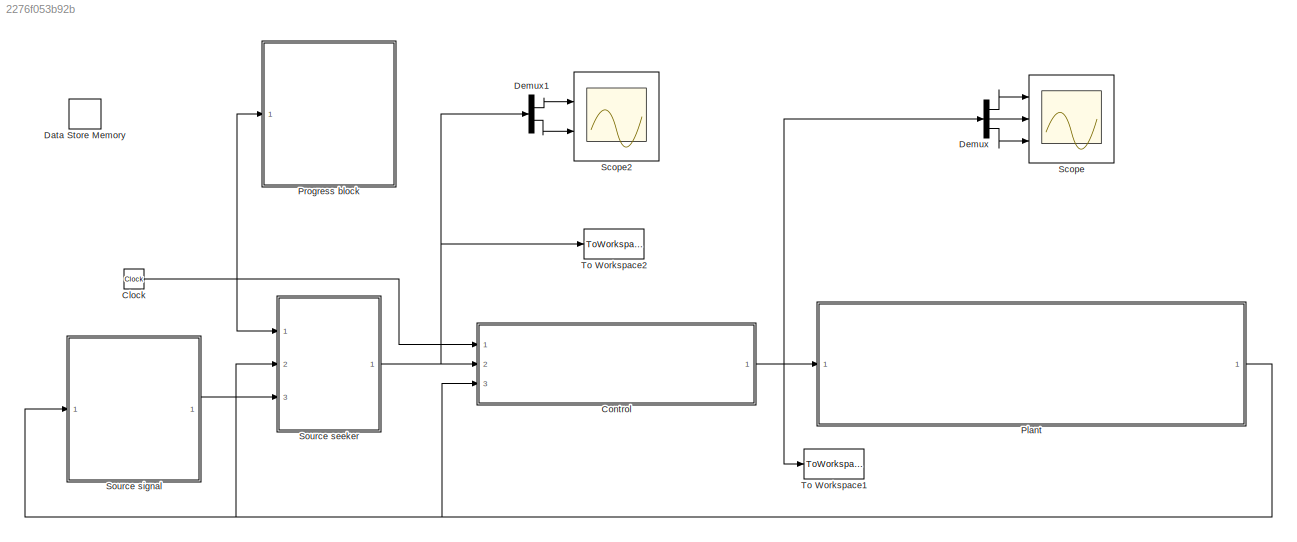
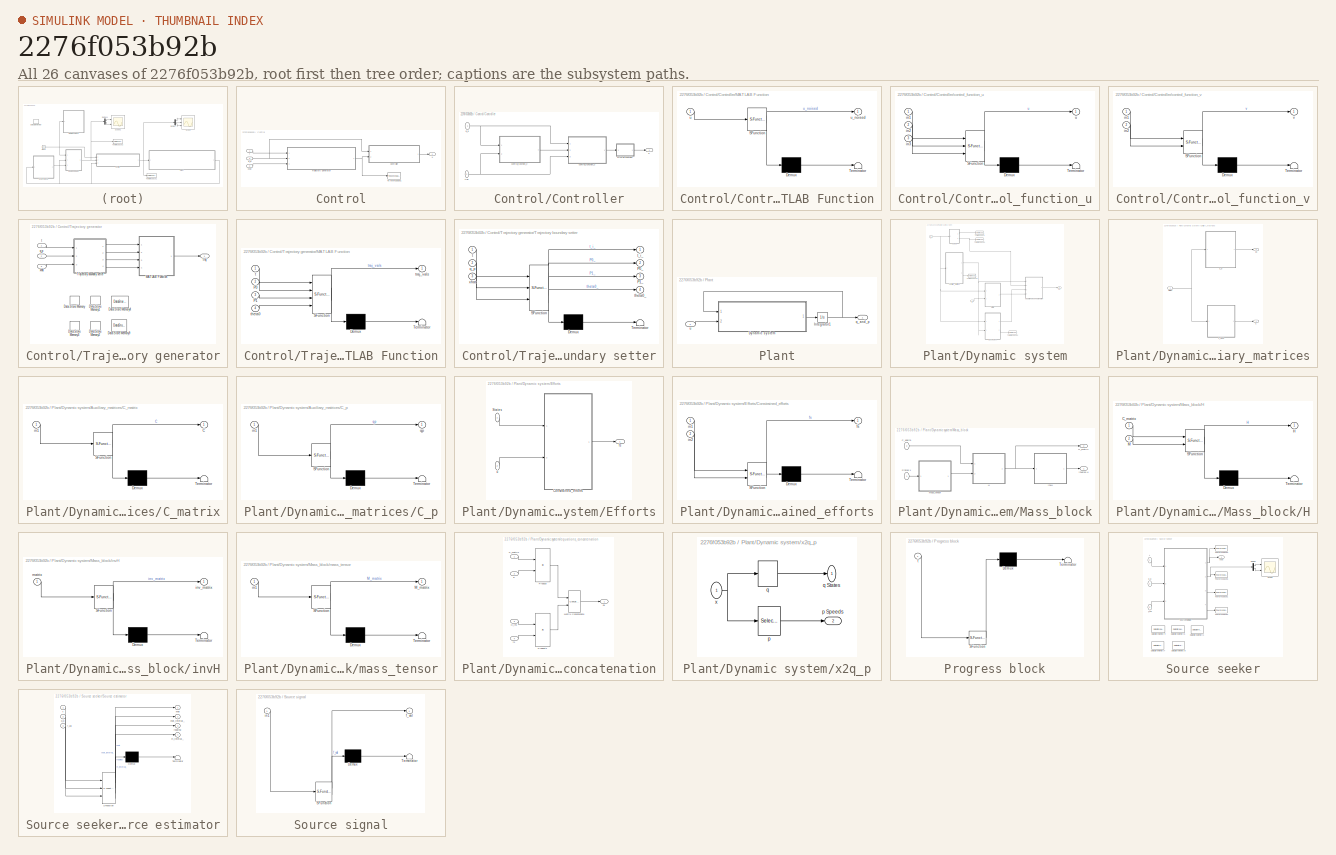
[diagram: thumbnail index - all 26 canvases of the model, root first then tree order]
MODEL slx_2276f053b92b
KIND model
CONFIG AbsTol = auto
CONFIG EnableMultiTasking = off
CONFIG FixedStep = 1e-5
CONFIG MaxStep = auto
CONFIG MinStep = auto
CONFIG RelTol = 1e-3
CONFIG SampleTimeConstraint = Unconstrained
CONFIG Solver = ode4
CONFIG SolverName = ode4
CONFIG StartTime = 0
CONFIG StopTime = tf
BLOCK [Clock] Clock
BLOCK [SubSystem] Control
  Ports = [3, 1]
  RequestExecContextInheritance = off
  Variant = off
BLOCK [SubSystem] Control/Controller
  Ports = [2, 1]
  RequestExecContextInheritance = off
  Variant = off
BLOCK [SubSystem] Control/Controller/MATLAB Function
  ErrorFcn = Stateflow.Translate.translate
  PermitHierarchicalResolution = ExplicitOnly
  Ports = [1, 1]
  RequestExecContextInheritance = off
  SFBlockType = MATLAB Function
  TreatAsAtomicUnit = on
  Variant = off
BLOCK [Demux] Control/Controller/MATLAB Function/ Demux 
  Outputs = 1
  Ports = [1, 1]
BLOCK [S-Function] Control/Controller/MATLAB Function/ SFunction 
  EnableBusSupport = on
  FunctionName = sf_sfun
  Parameters = control_info
  PortCounts = [1 2]
  Ports = [1, 2]
  SFcnIsStateOwnerBlock = off
  SFunctionDeploymentMode = off
  Tag = Stateflow S-Function bary_source_seeking 6
BLOCK [Terminator] Control/Controller/MATLAB Function/ Terminator 
BLOCK [Inport] Control/Controller/MATLAB Function/u
  IconDisplay = Port number
BLOCK [Outport] Control/Controller/MATLAB Function/u_noised
  IconDisplay = Port number
BLOCK [SubSystem] Control/Controller/control_function_u
  ErrorFcn = Stateflow.Translate.translate
  PermitHierarchicalResolution = ExplicitOnly
  Ports = [3, 1]
  RequestExecContextInheritance = off
  SFBlockType = MATLAB Function
  TreatAsAtomicUnit = on
  Variant = off
BLOCK [Demux] Control/Controller/control_function_u/ Demux 
  Outputs = 1
  Ports = [1, 1]
BLOCK [S-Function] Control/Controller/control_function_u/ SFunction 
  EnableBusSupport = on
  FunctionName = sf_sfun
  PortCounts = [3 2]
  Ports = [3, 2]
  SFcnIsStateOwnerBlock = off
  SFunctionDeploymentMode = off
  Tag = Stateflow S-Function bary_source_seeking 1
BLOCK [Terminator] Control/Controller/control_function_u/ Terminator 
BLOCK [Inport] Control/Controller/control_function_u/in1
  IconDisplay = Port number
BLOCK [Inport] Control/Controller/control_function_u/in2
  IconDisplay = Port number
  Port = 2
BLOCK [Inport] Control/Controller/control_function_u/in3
  IconDisplay = Port number
  Port = 3
BLOCK [Outport] Control/Controller/control_function_u/u
  IconDisplay = Port number
BLOCK [SubSystem] Control/Controller/control_function_v
  ErrorFcn = Stateflow.Translate.translate
  PermitHierarchicalResolution = ExplicitOnly
  Ports = [2, 1]
  RequestExecContextInheritance = off
  SFBlockType = MATLAB Function
  TreatAsAtomicUnit = on
  Variant = off
BLOCK [Demux] Control/Controller/control_function_v/ Demux 
  Outputs = 1
  Ports = [1, 1]
BLOCK [S-Function] Control/Controller/control_function_v/ SFunction 
  EnableBusSupport = on
  FunctionName = sf_sfun
  PortCounts = [2 2]
  Ports = [2, 2]
  SFcnIsStateOwnerBlock = off
  SFunctionDeploymentMode = off
  Tag = Stateflow S-Function bary_source_seeking 5
BLOCK [Terminator] Control/Controller/control_function_v/ Terminator 
BLOCK [Inport] Control/Controller/control_function_v/in1
  IconDisplay = Port number
BLOCK [Inport] Control/Controller/control_function_v/in2
  IconDisplay = Port number
  Port = 2
BLOCK [Outport] Control/Controller/control_function_v/v
  IconDisplay = Port number
BLOCK [Inport] Control/Controller/q_p
  IconDisplay = Port number
BLOCK [Inport] Control/Controller/traj
  IconDisplay = Port number
  Port = 2
BLOCK [Outport] Control/Controller/u
  IconDisplay = Port number
BLOCK [ToWorkspace] Control/To Workspace1
  FixptAsFi = on
  MaxDataPoints = inf
  Ports = [1]
  SampleTime = -1
  Save2DSignal = 3-D array (concatenate along third dimension)
  SaveFormat = Structure With Time
  VariableName = trajs
BLOCK [SubSystem] Control/Trajectory generator
  Ports = [3, 1]
  RequestExecContextInheritance = off
  Variant = off
BLOCK [DataStoreMemory] Control/Trajectory generator/Data Store Memory
  DataStoreName = P0
  Dimensions = [2, 1]
  InitialValue = x0(1:2)
  OutDataTypeStr = double
  ShowAdditionalParam = off
  SignalType = real
  WriteAfterReadMsg = warning
  WriteAfterWriteMsg = warning
BLOCK [DataStoreMemory] Control/Trajectory generator/Data Store Memory1
  DataStoreName = P1
  InitialValue = xhat0
  OutDataTypeStr = double
  ShowAdditionalParam = off
  SignalType = real
BLOCK [DataStoreMemory] Control/Trajectory generator/Data Store Memory2
  DataStoreName = theta0
  InitialValue = x0(3)
  OutDataTypeStr = double
  ShowAdditionalParam = off
  SignalType = real
BLOCK [DataStoreMemory] Control/Trajectory generator/Data Store Memory3
  DataStoreName = t_i
  OutDataTypeStr = double
  ShowAdditionalParam = off
  SignalType = real
BLOCK [DataStoreMemory] Control/Trajectory generator/Data Store Memory4
  DataStoreName = traj_params
  OutDataTypeStr = double
  ShowAdditionalParam = off
  SignalType = real
BLOCK [DataStoreMemory] Control/Trajectory generator/Data Store Memory9
  DataStoreName = t_0
  OutDataTypeStr = double
  ShowAdditionalParam = off
  SignalType = real
BLOCK [SubSystem] Control/Trajectory generator/MATLAB Function
  ErrorFcn = Stateflow.Translate.translate
  PermitHierarchicalResolution = ExplicitOnly
  Ports = [4, 1]
  RequestExecContextInheritance = off
  SFBlockType = MATLAB Function
  TreatAsAtomicUnit = on
  Variant = off
BLOCK [Demux] Control/Trajectory generator/MATLAB Function/ Demux 
  Outputs = 1
  Ports = [1, 1]
BLOCK [S-Function] Control/Trajectory generator/MATLAB Function/ SFunction 
  EnableBusSupport = on
  FunctionName = sf_sfun
  Parameters = trajectory_info
  PortCounts = [4 2]
  Ports = [4, 2]
  SFcnIsStateOwnerBlock = off
  SFunctionDeploymentMode = off
  Tag = Stateflow S-Function bary_source_seeking 2
BLOCK [Terminator] Control/Trajectory generator/MATLAB Function/ Terminator 
BLOCK [Inport] Control/Trajectory generator/MATLAB Function/P0
  IconDisplay = Port number
  Port = 2
BLOCK [Inport] Control/Trajectory generator/MATLAB Function/P1
  IconDisplay = Port number
  Port = 3
BLOCK [Inport] Control/Trajectory generator/MATLAB Function/t
  IconDisplay = Port number
BLOCK [Inport] Control/Trajectory generator/MATLAB Function/theta0
  IconDisplay = Port number
  Port = 4
BLOCK [Outport] Control/Trajectory generator/MATLAB Function/traj_vals
  IconDisplay = Port number
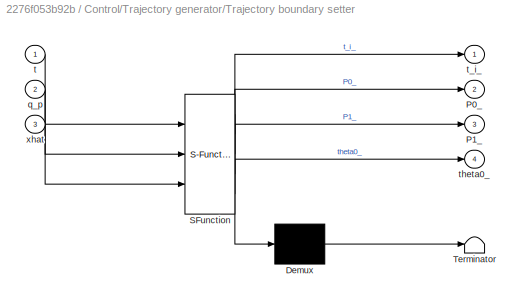
BLOCK [SubSystem] Control/Trajectory generator/Trajectory boundary setter
  ErrorFcn = Stateflow.Translate.translate
  PermitHierarchicalResolution = ExplicitOnly
  Ports = [3, 4]
  RequestExecContextInheritance = off
  SFBlockType = MATLAB Function
  TreatAsAtomicUnit = on
  Variant = off
BLOCK [Demux] Control/Trajectory generator/Trajectory boundary setter/ Demux 
  Outputs = 1
  Ports = [1, 1]
BLOCK [S-Function] Control/Trajectory generator/Trajectory boundary setter/ SFunction 
  EnableBusSupport = on
  FunctionName = sf_sfun
  Parameters = source_params
  PortCounts = [3 5]
  Ports = [3, 5]
  SFcnIsStateOwnerBlock = off
  SFunctionDeploymentMode = off
  Tag = Stateflow S-Function bary_source_seeking 4
BLOCK [Terminator] Control/Trajectory generator/Trajectory boundary setter/ Terminator 
BLOCK [Outport] Control/Trajectory generator/Trajectory boundary setter/P0_
  IconDisplay = Port number
  Port = 2
BLOCK [Outport] Control/Trajectory generator/Trajectory boundary setter/P1_
  IconDisplay = Port number
  Port = 3
BLOCK [Inport] Control/Trajectory generator/Trajectory boundary setter/q_p
  IconDisplay = Port number
  Port = 2
BLOCK [Inport] Control/Trajectory generator/Trajectory boundary setter/t
  IconDisplay = Port number
BLOCK [Outport] Control/Trajectory generator/Trajectory boundary setter/t_i_
  IconDisplay = Port number
BLOCK [Outport] Control/Trajectory generator/Trajectory boundary setter/theta0_
  IconDisplay = Port number
  Port = 4
BLOCK [Inport] Control/Trajectory generator/Trajectory boundary setter/xhat
  IconDisplay = Port number
  Port = 3
BLOCK [Inport] Control/Trajectory generator/q_p
  IconDisplay = Port number
  Port = 2
BLOCK [Inport] Control/Trajectory generator/t
  IconDisplay = Port number
BLOCK [Outport] Control/Trajectory generator/traj
  IconDisplay = Port number
BLOCK [Inport] Control/Trajectory generator/xhat
  IconDisplay = Port number
  Port = 3
BLOCK [Inport] Control/q_p
  IconDisplay = Port number
  Port = 3
BLOCK [Inport] Control/t
  IconDisplay = Port number
BLOCK [Outport] Control/u
  IconDisplay = Port number
BLOCK [Inport] Control/xhat
  IconDisplay = Port number
  Port = 2
BLOCK [DataStoreMemory] Data Store Memory
  DataStoreName = t_i
  OutDataTypeStr = double
  ShowAdditionalParam = off
  SignalType = real
BLOCK [Demux] Demux
  DisplayOption = bar
  Outputs = 3
  Ports = [1, 3]
BLOCK [Demux] Demux1
  DisplayOption = bar
  Outputs = 2
  Ports = [1, 2]
BLOCK [SubSystem] Plant
  Ports = [1, 1]
  RequestExecContextInheritance = off
  Variant = off
BLOCK [SubSystem] Plant/Dynamic system
  Ports = [2, 1]
  RequestExecContextInheritance = off
  Variant = off
BLOCK [SubSystem] Plant/Dynamic system/Auxiliary_matrices
  Ports = [1, 2]
  RequestExecContextInheritance = off
  Variant = off
BLOCK [Outport] Plant/Dynamic system/Auxiliary_matrices/C
  IconDisplay = Port number
BLOCK [SubSystem] Plant/Dynamic system/Auxiliary_matrices/C_matrix
  ErrorFcn = Stateflow.Translate.translate
  PermitHierarchicalResolution = ExplicitOnly
  Ports = [1, 1]
  RequestExecContextInheritance = off
  SFBlockType = MATLAB Function
  TreatAsAtomicUnit = on
  Variant = off
BLOCK [Demux] Plant/Dynamic system/Auxiliary_matrices/C_matrix/ Demux 
  Outputs = 1
  Ports = [1, 1]
BLOCK [S-Function] Plant/Dynamic system/Auxiliary_matrices/C_matrix/ SFunction 
  EnableBusSupport = on
  FunctionName = sf_sfun
  PortCounts = [1 2]
  Ports = [1, 2]
  SFcnIsStateOwnerBlock = off
  SFunctionDeploymentMode = off
  Tag = Stateflow S-Function bary_source_seeking 8
BLOCK [Terminator] Plant/Dynamic system/Auxiliary_matrices/C_matrix/ Terminator 
BLOCK [Outport] Plant/Dynamic system/Auxiliary_matrices/C_matrix/C
  IconDisplay = Port number
BLOCK [Inport] Plant/Dynamic system/Auxiliary_matrices/C_matrix/in1
  IconDisplay = Port number
BLOCK [SubSystem] Plant/Dynamic system/Auxiliary_matrices/C_p
  ErrorFcn = Stateflow.Translate.translate
  PermitHierarchicalResolution = ExplicitOnly
  Ports = [1, 1]
  RequestExecContextInheritance = off
  SFBlockType = MATLAB Function
  TreatAsAtomicUnit = on
  Variant = off
BLOCK [Demux] Plant/Dynamic system/Auxiliary_matrices/C_p/ Demux 
  Outputs = 1
  Ports = [1, 1]
BLOCK [S-Function] Plant/Dynamic system/Auxiliary_matrices/C_p/ SFunction 
  EnableBusSupport = on
  FunctionName = sf_sfun
  PortCounts = [1 2]
  Ports = [1, 2]
  SFcnIsStateOwnerBlock = off
  SFunctionDeploymentMode = off
  Tag = Stateflow S-Function bary_source_seeking 16
BLOCK [Terminator] Plant/Dynamic system/Auxiliary_matrices/C_p/ Terminator 
BLOCK [Inport] Plant/Dynamic system/Auxiliary_matrices/C_p/in1
  IconDisplay = Port number
BLOCK [Outport] Plant/Dynamic system/Auxiliary_matrices/C_p/qp
  IconDisplay = Port number
BLOCK [Inport] Plant/Dynamic system/Auxiliary_matrices/States
  IconDisplay = Port number
BLOCK [Outport] Plant/Dynamic system/Auxiliary_matrices/qp
  IconDisplay = Port number
  Port = 2
BLOCK [SubSystem] Plant/Dynamic system/Efforts
  Ports = [2, 1]
  RequestExecContextInheritance = off
  Variant = off
BLOCK [SubSystem] Plant/Dynamic system/Efforts/Constrained_efforts
  ErrorFcn = Stateflow.Translate.translate
  PermitHierarchicalResolution = ExplicitOnly
  Ports = [2, 1]
  RequestExecContextInheritance = off
  SFBlockType = MATLAB Function
  TreatAsAtomicUnit = on
  Variant = off
BLOCK [Demux] Plant/Dynamic system/Efforts/Constrained_efforts/ Demux 
  Outputs = 1
  Ports = [1, 1]
BLOCK [S-Function] Plant/Dynamic system/Efforts/Constrained_efforts/ SFunction 
  EnableBusSupport = on
  FunctionName = sf_sfun
  PortCounts = [2 2]
  Ports = [2, 2]
  SFcnIsStateOwnerBlock = off
  SFunctionDeploymentMode = off
  Tag = Stateflow S-Function bary_source_seeking 9
BLOCK [Terminator] Plant/Dynamic system/Efforts/Constrained_efforts/ Terminator 
BLOCK [Outport] Plant/Dynamic system/Efforts/Constrained_efforts/fs
  IconDisplay = Port number
BLOCK [Inport] Plant/Dynamic system/Efforts/Constrained_efforts/in1
  IconDisplay = Port number
BLOCK [Inport] Plant/Dynamic system/Efforts/Constrained_efforts/in2
  IconDisplay = Port number
  Port = 2
BLOCK [Inport] Plant/Dynamic system/Efforts/States
  IconDisplay = Port number
BLOCK [Outport] Plant/Dynamic system/Efforts/fs
  IconDisplay = Port number
BLOCK [Inport] Plant/Dynamic system/Efforts/u
  IconDisplay = Port number
  Port = 2
BLOCK [SubSystem] Plant/Dynamic system/Mass_block
  Ports = [2, 2]
  RequestExecContextInheritance = off
  Variant = off
BLOCK [Inport] Plant/Dynamic system/Mass_block/C_1delta  
  IconDisplay = Port number
  Port = 2
BLOCK [SubSystem] Plant/Dynamic system/Mass_block/H
  ErrorFcn = Stateflow.Translate.translate
  PermitHierarchicalResolution = ExplicitOnly
  Ports = [2, 1]
  RequestExecContextInheritance = off
  SFBlockType = MATLAB Function
  TreatAsAtomicUnit = on
  Variant = off
BLOCK [Demux] Plant/Dynamic system/Mass_block/H/ Demux 
  Outputs = 1
  Ports = [1, 1]
BLOCK [S-Function] Plant/Dynamic system/Mass_block/H/ SFunction 
  EnableBusSupport = on
  FunctionName = sf_sfun
  PortCounts = [2 2]
  Ports = [2, 2]
  SFcnIsStateOwnerBlock = off
  SFunctionDeploymentMode = off
  Tag = Stateflow S-Function bary_source_seeking 10
BLOCK [Terminator] Plant/Dynamic system/Mass_block/H/ Terminator 
BLOCK [Inport] Plant/Dynamic system/Mass_block/H/C_matrix
  IconDisplay = Port number
BLOCK [Outport] Plant/Dynamic system/Mass_block/H/H
  IconDisplay = Port number
BLOCK [Inport] Plant/Dynamic system/Mass_block/H/M
  IconDisplay = Port number
  Port = 2
BLOCK [Outport] Plant/Dynamic system/Mass_block/H_matrix
  IconDisplay = Port number
  Port = 2
BLOCK [Inport] Plant/Dynamic system/Mass_block/States x
  IconDisplay = Port number
BLOCK [SubSystem] Plant/Dynamic system/Mass_block/invH
  ErrorFcn = Stateflow.Translate.translate
  PermitHierarchicalResolution = ExplicitOnly
  Ports = [1, 1]
  RequestExecContextInheritance = off
  SFBlockType = MATLAB Function
  TreatAsAtomicUnit = on
  Variant = off
BLOCK [Demux] Plant/Dynamic system/Mass_block/invH/ Demux 
  Outputs = 1
  Ports = [1, 1]
BLOCK [S-Function] Plant/Dynamic system/Mass_block/invH/ SFunction 
  EnableBusSupport = on
  FunctionName = sf_sfun
  PortCounts = [1 2]
  Ports = [1, 2]
  SFcnIsStateOwnerBlock = off
  SFunctionDeploymentMode = off
  Tag = Stateflow S-Function bary_source_seeking 12
BLOCK [Terminator] Plant/Dynamic system/Mass_block/invH/ Terminator 
BLOCK [Outport] Plant/Dynamic system/Mass_block/invH/inv_matrix
  IconDisplay = Port number
BLOCK [Inport] Plant/Dynamic system/Mass_block/invH/matrix
  IconDisplay = Port number
BLOCK [Outport] Plant/Dynamic system/Mass_block/inverse H
  IconDisplay = Port number
BLOCK [SubSystem] Plant/Dynamic system/Mass_block/mass_tensor
  ErrorFcn = Stateflow.Translate.translate
  PermitHierarchicalResolution = ExplicitOnly
  Ports = [1, 1]
  RequestExecContextInheritance = off
  SFBlockType = MATLAB Function
  TreatAsAtomicUnit = on
  Variant = off
BLOCK [Demux] Plant/Dynamic system/Mass_block/mass_tensor/ Demux 
  Outputs = 1
  Ports = [1, 1]
BLOCK [S-Function] Plant/Dynamic system/Mass_block/mass_tensor/ SFunction 
  EnableBusSupport = on
  FunctionName = sf_sfun
  PortCounts = [1 2]
  Ports = [1, 2]
  SFcnIsStateOwnerBlock = off
  SFunctionDeploymentMode = off
  Tag = Stateflow S-Function bary_source_seeking 11
BLOCK [Terminator] Plant/Dynamic system/Mass_block/mass_tensor/ Terminator 
BLOCK [Outport] Plant/Dynamic system/Mass_block/mass_tensor/M_matrix
  IconDisplay = Port number
BLOCK [Inport] Plant/Dynamic system/Mass_block/mass_tensor/in1
  IconDisplay = Port number
BLOCK [ToWorkspace] Plant/Dynamic system/To Workspace
  FixptAsFi = on
  MaxDataPoints = inf
  Ports = [1]
  SampleTime = -1
  Save2DSignal = 3-D array (concatenate along third dimension)
  SaveFormat = Structure With Time
  VariableName = coordinates
BLOCK [ToWorkspace] Plant/Dynamic system/To Workspace1
  FixptAsFi = on
  MaxDataPoints = inf
  Ports = [1]
  SampleTime = -1
  Save2DSignal = 3-D array (concatenate along third dimension)
  SaveFormat = Structure With Time
  VariableName = p_speeds
BLOCK [ToWorkspace] Plant/Dynamic system/To Workspace2
  FixptAsFi = on
  MaxDataPoints = inf
  Ports = [1]
  SampleTime = -1
  Save2DSignal = 3-D array (concatenate along third dimension)
  SaveFormat = Structure With Time
  VariableName = H
BLOCK [ToWorkspace] Plant/Dynamic system/To Workspace3
  FixptAsFi = on
  MaxDataPoints = inf
  Ports = [1]
  SampleTime = -1
  Save2DSignal = 3-D array (concatenate along third dimension)
  SaveFormat = Structure With Time
  VariableName = q_speeds
BLOCK [Outport] Plant/Dynamic system/dx
  IconDisplay = Port number
BLOCK [SubSystem] Plant/Dynamic system/equations_concatenation
  Ports = [4, 1]
  RequestExecContextInheritance = off
  Variant = off
BLOCK [Inport] Plant/Dynamic system/equations_concatenation/C_matrix
  IconDisplay = Port number
BLOCK [Inport] Plant/Dynamic system/equations_concatenation/H_inv
  IconDisplay = Port number
  Port = 3
BLOCK [Concatenate] Plant/Dynamic system/equations_concatenation/Matrix Concatenate
  ConcatenateDimension = 2
  Ports = [2, 1]
BLOCK [Product] Plant/Dynamic system/equations_concatenation/Product
  InputSameDT = off
  Multiplication = Matrix(*)
  OutDataTypeStr = Inherit: Inherit via internal rule
  Ports = [2, 1]
  RndMeth = Floor
  SaturateOnIntegerOverflow = off
BLOCK [Product] Plant/Dynamic system/equations_concatenation/Product1
  InputSameDT = off
  Multiplication = Matrix(*)
  OutDataTypeStr = Inherit: Inherit via internal rule
  Ports = [2, 1]
  RndMeth = Floor
  SaturateOnIntegerOverflow = off
BLOCK [Outport] Plant/Dynamic system/equations_concatenation/dx
  IconDisplay = Port number
BLOCK [Inport] Plant/Dynamic system/equations_concatenation/fs
  IconDisplay = Port number
  Port = 4
BLOCK [Inport] Plant/Dynamic system/equations_concatenation/p
  IconDisplay = Port number
  Port = 2
BLOCK [Inport] Plant/Dynamic system/u
  IconDisplay = Port number
  Port = 2
BLOCK [Inport] Plant/Dynamic system/x
  IconDisplay = Port number
BLOCK [SubSystem] Plant/Dynamic system/x2q_p
  Ports = [1, 2]
  RequestExecContextInheritance = off
  Variant = off
BLOCK [Selector] Plant/Dynamic system/x2q_p/p
  IndexOptions = Index vector (dialog)
  Indices = (length(sys.kin.q))+1:(length(sys.kin.q) + length(sys.kin.p{end}))
  InputPortWidth = length(sys.kin.q) + length(sys.kin.p{end})
  OutputSizes = 1
  Ports = [1, 1]
BLOCK [Outport] Plant/Dynamic system/x2q_p/p Speeds
  IconDisplay = Port number
  Port = 2
BLOCK [Selector] Plant/Dynamic system/x2q_p/q
  IndexOptions = Index vector (dialog)
  Indices = 1:length(sys.kin.q)
  InputPortWidth = length(sys.kin.q) + length(sys.kin.p{end})
  OutputSizes = 1
  Ports = [1, 1]
BLOCK [Outport] Plant/Dynamic system/x2q_p/q States
  IconDisplay = Port number
BLOCK [Inport] Plant/Dynamic system/x2q_p/x
  IconDisplay = Port number
BLOCK [Integrator] Plant/Integrator1
  InitialCondition = x0
  Ports = [1, 1]
BLOCK [Outport] Plant/q_and_p
  IconDisplay = Port number
BLOCK [Inport] Plant/u
  IconDisplay = Port number
BLOCK [SubSystem] Progress block
  ErrorFcn = Stateflow.Translate.translate
  PermitHierarchicalResolution = ExplicitOnly
  Ports = [1]
  RequestExecContextInheritance = off
  SFBlockType = MATLAB Function
  TreatAsAtomicUnit = on
  Variant = off
BLOCK [Demux] Progress block/ Demux 
  Outputs = 1
  Ports = [1, 1]
BLOCK [S-Function] Progress block/ SFunction 
  EnableBusSupport = on
  FunctionName = sf_sfun
  Parameters = delta_t_disp,tf
  PortCounts = [1 1]
  Ports = [1, 1]
  SFcnIsStateOwnerBlock = off
  SFunctionDeploymentMode = off
  Tag = Stateflow S-Function bary_source_seeking 13
BLOCK [Terminator] Progress block/ Terminator 
BLOCK [Inport] Progress block/t
  IconDisplay = Port number
BLOCK [Scope] Scope
  NumInputPorts = 3
  Ports = [3]
  ScopeSpecificationString = Simulink.scopes.TimeScopeBlockCfg('CurrentConfiguration', extmgr.ConfigurationSet(extmgr.Configuration('Core','General UI',true),extmgr.Configuration('Core','Source UI',true),extmgr.Configuration('Sources','WiredSimulink',true),extmgr.Configuration('Visuals','Time Domain',true,'SerializedDisplays',{struct('MinYLimReal','-47524560.40631','MaxYLimReal','46881254.05789','YLabelReal','','MinYLimMag','...<+2693ch>
BLOCK [Scope] Scope2
  NumInputPorts = 2
  Ports = [2]
  ScopeSpecificationString = Simulink.scopes.TimeScopeBlockCfg('CurrentConfiguration', extmgr.ConfigurationSet(extmgr.Configuration('Core','General UI',true),extmgr.Configuration('Core','Source UI',true),extmgr.Configuration('Sources','WiredSimulink',true,'DataLoggingVariableName','ScopeData3'),extmgr.Configuration('Visuals','Time Domain',true,'SerializedDisplays',{struct('MinYLimReal','1.14515','MaxYLimReal','3.56249','YLabe...<+1977ch>
BLOCK [SubSystem] Source seeker
  Ports = [3, 1]
  RequestExecContextInheritance = off
  Variant = off
BLOCK [DataStoreMemory] Source seeker/Data Store Memory1
  DataStoreName = t_0c
  OutDataTypeStr = double
  ShowAdditionalParam = off
  SignalType = real
BLOCK [DataStoreMemory] Source seeker/Data Store Memory4
  DataStoreName = xhat_interval
  Dimensions = [2, 1]
  InitialValue = xhat0
  OutDataTypeStr = double
  ShowAdditionalParam = off
  SignalType = real
BLOCK [DataStoreMemory] Source seeker/Data Store Memory5
  DataStoreName = m_interval
  OutDataTypeStr = double
  ShowAdditionalParam = off
  SignalType = real
BLOCK [DataStoreMemory] Source seeker/Data Store Memory7
  DataStoreName = xhat_prev
  InitialValue = xhat0 + gaussianrnd([0; 0], source_params.devval)
  OutDataTypeStr = double
  ShowAdditionalParam = off
  SignalType = real
BLOCK [DataStoreMemory] Source seeker/Data Store Memory9
  DataStoreName = t_0s
  OutDataTypeStr = double
  ShowAdditionalParam = off
  SignalType = real
BLOCK [Demux] Source seeker/Demux
  DisplayOption = bar
  Outputs = 2
  Ports = [1, 2]
BLOCK [Scope] Source seeker/Scope
  NumInputPorts = 2
  Ports = [2]
  ScopeSpecificationString = Simulink.scopes.TimeScopeBlockCfg('CurrentConfiguration', extmgr.ConfigurationSet(extmgr.Configuration('Core','General UI',true),extmgr.Configuration('Core','Source UI',true),extmgr.Configuration('Sources','WiredSimulink',true,'DataLoggingVariableName','ScopeData2'),extmgr.Configuration('Visuals','Time Domain',true,'SerializedDisplays',{struct('MinYLimReal','1.97073','MaxYLimReal','2.30429','YLabe...<+1980ch>
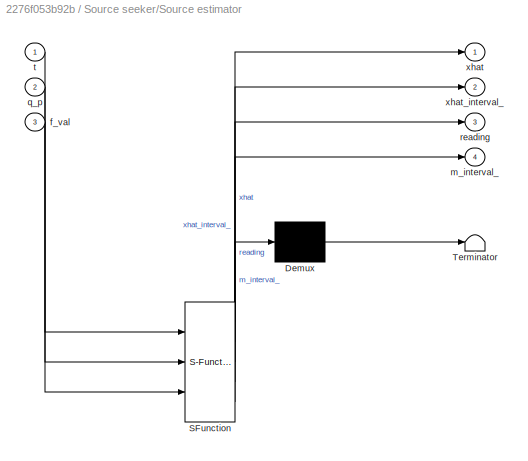
BLOCK [SubSystem] Source seeker/Source estimator
  ErrorFcn = Stateflow.Translate.translate
  PermitHierarchicalResolution = ExplicitOnly
  Ports = [3, 4]
  RequestExecContextInheritance = off
  SFBlockType = MATLAB Function
  TreatAsAtomicUnit = on
  Variant = off
BLOCK [Demux] Source seeker/Source estimator/ Demux 
  Outputs = 1
  Ports = [1, 1]
BLOCK [S-Function] Source seeker/Source estimator/ SFunction 
  EnableBusSupport = on
  FunctionName = sf_sfun
  Parameters = source_params
  PortCounts = [3 5]
  Ports = [3, 5]
  SFcnIsStateOwnerBlock = off
  SFunctionDeploymentMode = off
  Tag = Stateflow S-Function bary_source_seeking 3
BLOCK [Terminator] Source seeker/Source estimator/ Terminator 
BLOCK [Inport] Source seeker/Source estimator/f_val
  IconDisplay = Port number
  Port = 3
BLOCK [Outport] Source seeker/Source estimator/m_interval_
  IconDisplay = Port number
  Port = 4
BLOCK [Inport] Source seeker/Source estimator/q_p
  IconDisplay = Port number
  Port = 2
BLOCK [Outport] Source seeker/Source estimator/reading
  IconDisplay = Port number
  Port = 3
BLOCK [Inport] Source seeker/Source estimator/t
  IconDisplay = Port number
BLOCK [Outport] Source seeker/Source estimator/xhat
  IconDisplay = Port number
BLOCK [Outport] Source seeker/Source estimator/xhat_interval_
  IconDisplay = Port number
  Port = 2
BLOCK [ToWorkspace] Source seeker/To Workspace1
  FixptAsFi = on
  MaxDataPoints = inf
  Ports = [1]
  SampleTime = -1
  Save2DSignal = 3-D array (concatenate along third dimension)
  SaveFormat = Structure With Time
  VariableName = readings
BLOCK [ToWorkspace] Source seeker/To Workspace2
  FixptAsFi = on
  MaxDataPoints = inf
  Ports = [1]
  SampleTime = -1
  Save2DSignal = 3-D array (concatenate along third dimension)
  SaveFormat = Structure With Time
  VariableName = m_interval
BLOCK [ToWorkspace] Source seeker/To Workspace3
  FixptAsFi = on
  MaxDataPoints = inf
  Ports = [1]
  SampleTime = -1
  Save2DSignal = 3-D array (concatenate along third dimension)
  SaveFormat = Structure With Time
  VariableName = xhat
BLOCK [ToWorkspace] Source seeker/To Workspace5
  FixptAsFi = on
  MaxDataPoints = inf
  Ports = [1]
  SampleTime = -1
  Save2DSignal = 3-D array (concatenate along third dimension)
  SaveFormat = Structure With Time
  VariableName = xhat_interval
BLOCK [Inport] Source seeker/f_val
  IconDisplay = Port number
  Port = 3
BLOCK [Inport] Source seeker/q_p
  IconDisplay = Port number
  Port = 2
BLOCK [Inport] Source seeker/t
  IconDisplay = Port number
BLOCK [Outport] Source seeker/xhat
  IconDisplay = Port number
BLOCK [SubSystem] Source signal
  ErrorFcn = Stateflow.Translate.translate
  PermitHierarchicalResolution = ExplicitOnly
  Ports = [1, 1]
  RequestExecContextInheritance = off
  SFBlockType = MATLAB Function
  TreatAsAtomicUnit = on
  Variant = off
BLOCK [Demux] Source signal/ Demux 
  Outputs = 1
  Ports = [1, 1]
BLOCK [S-Function] Source signal/ SFunction 
  EnableBusSupport = on
  FunctionName = sf_sfun
  PortCounts = [1 2]
  Ports = [1, 2]
  SFcnIsStateOwnerBlock = off
  SFunctionDeploymentMode = off
  Tag = Stateflow S-Function bary_source_seeking 7
BLOCK [Terminator] Source signal/ Terminator 
BLOCK [Outport] Source signal/f_val
  IconDisplay = Port number
BLOCK [Inport] Source signal/in1
  IconDisplay = Port number
BLOCK [ToWorkspace] To Workspace1
  FixptAsFi = on
  MaxDataPoints = inf
  Ports = [1]
  SampleTime = -1
  Save2DSignal = 3-D array (concatenate along third dimension)
  SaveFormat = Structure With Time
  VariableName = u
BLOCK [ToWorkspace] To Workspace2
  FixptAsFi = on
  MaxDataPoints = inf
  Ports = [1]
  SampleTime = -1
  Save2DSignal = 3-D array (concatenate along third dimension)
  SaveFormat = Structure With Time
  VariableName = estimations
NET Clock:1 -> Control:1, Progress block:1, Source seeker:1
LINE Control/Controller/MATLAB Function:1 -> Control/Controller/u:1
LINE Control/Controller/control_function_u:1 -> Control/Controller/MATLAB Function:1
LINE Control/Controller/control_function_v:1 -> Control/Controller/control_function_u:2
NET Control/Controller/q_p:1 -> Control/Controller/control_function_u:1, Control/Controller/control_function_v:1
NET Control/Controller/traj:1 -> Control/Controller/control_function_u:3, Control/Controller/control_function_v:2
LINE Control/Controller:1 -> Control/u:1
LINE Control/Trajectory generator/MATLAB Function:1 -> Control/Trajectory generator/traj:1
LINE Control/Trajectory generator/Trajectory boundary setter:1 -> Control/Trajectory generator/MATLAB Function:1
LINE Control/Trajectory generator/Trajectory boundary setter:2 -> Control/Trajectory generator/MATLAB Function:2
LINE Control/Trajectory generator/Trajectory boundary setter:3 -> Control/Trajectory generator/MATLAB Function:3
LINE Control/Trajectory generator/Trajectory boundary setter:4 -> Control/Trajectory generator/MATLAB Function:4
LINE Control/Trajectory generator/q_p:1 -> Control/Trajectory generator/Trajectory boundary setter:2
LINE Control/Trajectory generator/t:1 -> Control/Trajectory generator/Trajectory boundary setter:1
LINE Control/Trajectory generator/xhat:1 -> Control/Trajectory generator/Trajectory boundary setter:3
NET Control/Trajectory generator:1 -> Control/Controller:2, Control/To Workspace1:1
NET Control/q_p:1 -> Control/Controller:1, Control/Trajectory generator:2
LINE Control/t:1 -> Control/Trajectory generator:1
LINE Control/xhat:1 -> Control/Trajectory generator:3
NET Control:1 -> Demux:1, Plant:1, To Workspace1:1
LINE Demux1:1 -> Scope2:1
LINE Demux1:2 -> Scope2:2
LINE Demux:1 -> Scope:1
LINE Demux:2 -> Scope:2
LINE Demux:3 -> Scope:3
LINE Plant/Dynamic system/Auxiliary_matrices/C_matrix:1 -> Plant/Dynamic system/Auxiliary_matrices/C:1
LINE Plant/Dynamic system/Auxiliary_matrices/C_p:1 -> Plant/Dynamic system/Auxiliary_matrices/qp:1
NET Plant/Dynamic system/Auxiliary_matrices/States:1 -> Plant/Dynamic system/Auxiliary_matrices/C_matrix:1, Plant/Dynamic system/Auxiliary_matrices/C_p:1
NET Plant/Dynamic system/Auxiliary_matrices:1 -> Plant/Dynamic system/Mass_block:2, Plant/Dynamic system/equations_concatenation:1
LINE Plant/Dynamic system/Auxiliary_matrices:2 -> Plant/Dynamic system/To Workspace3:1
LINE Plant/Dynamic system/Efforts/Constrained_efforts:1 -> Plant/Dynamic system/Efforts/fs:1
LINE Plant/Dynamic system/Efforts/States:1 -> Plant/Dynamic system/Efforts/Constrained_efforts:1
LINE Plant/Dynamic system/Efforts/u:1 -> Plant/Dynamic system/Efforts/Constrained_efforts:2
LINE Plant/Dynamic system/Efforts:1 -> Plant/Dynamic system/equations_concatenation:4
LINE Plant/Dynamic system/Mass_block/C_1delta  :1 -> Plant/Dynamic system/Mass_block/H:1
NET Plant/Dynamic system/Mass_block/H:1 -> Plant/Dynamic system/Mass_block/H_matrix:1, Plant/Dynamic system/Mass_block/invH:1
LINE Plant/Dynamic system/Mass_block/States x:1 -> Plant/Dynamic system/Mass_block/mass_tensor:1
LINE Plant/Dynamic system/Mass_block/invH:1 -> Plant/Dynamic system/Mass_block/inverse H:1
LINE Plant/Dynamic system/Mass_block/mass_tensor:1 -> Plant/Dynamic system/Mass_block/H:2
LINE Plant/Dynamic system/Mass_block:1 -> Plant/Dynamic system/equations_concatenation:3
LINE Plant/Dynamic system/Mass_block:2 -> Plant/Dynamic system/To Workspace2:1
LINE Plant/Dynamic system/equations_concatenation/C_matrix:1 -> Plant/Dynamic system/equations_concatenation/Product:1
LINE Plant/Dynamic system/equations_concatenation/H_inv:1 -> Plant/Dynamic system/equations_concatenation/Product1:1
LINE Plant/Dynamic system/equations_concatenation/Matrix Concatenate:1 -> Plant/Dynamic system/equations_concatenation/dx:1
LINE Plant/Dynamic system/equations_concatenation/Product1:1 -> Plant/Dynamic system/equations_concatenation/Matrix Concatenate:2
LINE Plant/Dynamic system/equations_concatenation/Product:1 -> Plant/Dynamic system/equations_concatenation/Matrix Concatenate:1
LINE Plant/Dynamic system/equations_concatenation/fs:1 -> Plant/Dynamic system/equations_concatenation/Product1:2
LINE Plant/Dynamic system/equations_concatenation/p:1 -> Plant/Dynamic system/equations_concatenation/Product:2
LINE Plant/Dynamic system/equations_concatenation:1 -> Plant/Dynamic system/dx:1
LINE Plant/Dynamic system/u:1 -> Plant/Dynamic system/Efforts:2
LINE Plant/Dynamic system/x2q_p/p:1 -> Plant/Dynamic system/x2q_p/p Speeds:1
LINE Plant/Dynamic system/x2q_p/q:1 -> Plant/Dynamic system/x2q_p/q States:1
NET Plant/Dynamic system/x2q_p/x:1 -> Plant/Dynamic system/x2q_p/p:1, Plant/Dynamic system/x2q_p/q:1
LINE Plant/Dynamic system/x2q_p:1 -> Plant/Dynamic system/To Workspace:1
NET Plant/Dynamic system/x2q_p:2 -> Plant/Dynamic system/To Workspace1:1, Plant/Dynamic system/equations_concatenation:2
NET Plant/Dynamic system/x:1 -> Plant/Dynamic system/Auxiliary_matrices:1, Plant/Dynamic system/Efforts:1, Plant/Dynamic system/Mass_block:1, Plant/Dynamic system/x2q_p:1
LINE Plant/Dynamic system:1 -> Plant/Integrator1:1
NET Plant/Integrator1:1 -> Plant/Dynamic system:1, Plant/q_and_p:1
LINE Plant/u:1 -> Plant/Dynamic system:2
NET Plant:1 -> Control:3, Source seeker:2, Source signal:1
LINE Source seeker/Demux:1 -> Source seeker/Scope:1
LINE Source seeker/Demux:2 -> Source seeker/Scope:2
NET Source seeker/Source estimator:1 -> Source seeker/To Workspace3:1, Source seeker/xhat:1
NET Source seeker/Source estimator:2 -> Source seeker/Demux:1, Source seeker/To Workspace5:1
LINE Source seeker/Source estimator:3 -> Source seeker/To Workspace1:1
LINE Source seeker/Source estimator:4 -> Source seeker/To Workspace2:1
LINE Source seeker/f_val:1 -> Source seeker/Source estimator:3
LINE Source seeker/q_p:1 -> Source seeker/Source estimator:2
LINE Source seeker/t:1 -> Source seeker/Source estimator:1
NET Source seeker:1 -> Control:2, Demux1:1, To Workspace2:1
LINE Source signal:1 -> Source seeker:3
note: NET lines group one-source signal fan-out (src -> all destinations, sorted); 1:1 wires keep LINE
CHART Control/Controller/control_function_u states=1 transitions=1
  STATE_LABEL 'eML_blk_kernel()'
  STATE_LABEL 'SCRIPT:\nfunction u = ControlFunction_u(in1,in2,in3)\n\n%    This function was generated by the Symbolic Math Toolbox version 7.2.\n\n%    03-Jun-2022 19:16:08\n\n\n\np1 = in1(7,:);\n\np2 = in1(8,:);\n\np3 = in1(9,:);\n\nphi1 = in1(4,:);\n\nphi2 = in1(5,:);\n\nphi3 = in1(6,:);\n\nth = in1(3,:);\n\nv1 = in2(1,:);\n\nv2 = in2(2,:);\n\nv3 = in2(3,:);\n\nx = in1(1,:);\n\ny = in1(2,:);\n\ny1_ref = in3(1,:);\n\ny2_ref = in3(4,:);\n\ny3_ref...<+3477ch>'
CHART Control/Trajectory generator/MATLAB Function states=1 transitions=1
  STATE_LABEL 'eML_blk_kernel()'
  STATE_LABEL 'SCRIPT:\n    function traj_vals = traj_gen(t, P0, P1, theta0, trajectory_info)\n    % Origin and destiny\n    P0 = double(P0);\n    P1 = double(P1);    \n    \n    % Added noise to destination continuously\n    if(trajectory_info.is_dest_noised)\n        sP = trajectory_info.devval_P0;\n        zP = gaussianrnd([0; 0], sP);\n        P1 = P1 + zP;\n    end\n    \n    % Trajectory options\n    T = trajectory_info...<+546ch>'
CHART Source seeker/Source estimator states=1 transitions=1
  STATE_LABEL 'eML_blk_kernel()'
  STATE_LABEL 'SCRIPT:\nfunction [xhat, xhat_interval_, reading, m_interval_] = ...\n            source_estimation(t, q_p, f_val, ...\n                              source_params)\n    global t_0c t_0s xhat_prev m_interval xhat_interval;\n    \n    % Source seeking parameters\n    nu = source_params.nu;\n    lambda = source_params.lambda;\n    T_cur = source_params.T_cur;\n    T_sample = source_params.T_sample;\n    devval...<+751ch>'
CHART Control/Trajectory generator/Trajectory boundary setter states=1 transitions=1
  STATE_LABEL 'eML_blk_kernel()'
  STATE_LABEL 'SCRIPT:\nfunction [t_i_, P0_, P1_, theta0_] = trajectory(t, q_p, xhat, source_params)\n    global P0 P1 t_0 theta0;\n    \n    T_cur = source_params.T_cur;\n    \n    % Initial and end trajectory points\n    if(t - t_0 > T_cur)\n        t_0 = t;\n        \n%         P0 = q_p(1:2);\n%         P1 = xhat;\n\n        P0 = P1;\n        P1 = xhat;\n\n        theta0 = q_p(3);\n        \n        t_i = t - t_0;\n    end\n    ...<+99ch>'
CHART Control/Controller/control_function_v states=1 transitions=1
  STATE_LABEL 'eML_blk_kernel()'
  STATE_LABEL 'SCRIPT:\nfunction v = ControlFunction_v(in1,in2)\n\n%    This function was generated by the Symbolic Math Toolbox version 7.2.\n\n%    03-Jun-2022 19:16:08\n\n\n\np1 = in1(7,:);\n\np2 = in1(8,:);\n\np3 = in1(9,:);\n\nth = in1(3,:);\n\nx = in1(1,:);\n\ny = in1(2,:);\n\ny1_ref = in2(1,:);\n\ny2_ref = in2(4,:);\n\ny3_ref = in2(7,:);\n\nyp1_ref = in2(2,:);\n\nyp2_ref = in2(5,:);\n\nyp3_ref = in2(8,:);\n\nv = [p1.*-2.016984683865249e1...<+964ch>'
CHART Control/Controller/MATLAB Function states=1 transitions=1
  STATE_LABEL 'eML_blk_kernel()'
  STATE_LABEL 'SCRIPT:\nfunction u_noised = fcn(u, control_info)\n    % Added noise to control signal\n    if(control_info.is_control_noised)\n        su = control_info.devval;\n        \n        nu = length(u);\n        zero_u = zeros(nu, 1);\n        zu = gaussianrnd(zero_u, su);\n        \n        u_noised = u + zu;\n    else\n        u_noised = u;\n    end\nend\n'
CHART Source signal states=1 transitions=1
  STATE_LABEL 'eML_blk_kernel()'
  STATE_LABEL 'SCRIPT:\nfunction f_val = source_signal(in1)\n\n%    This function was generated by the Symbolic Math Toolbox version 7.2.\n\n%    03-Jun-2022 19:16:10\n\n\n\nx = in1(1,:);\n\ny = in1(2,:);\n\nt2 = x+1.0;\n\nt3 = y+1.0;\n\nt4 = x-1.0;\n\nt5 = x.^2;\n\nt6 = y.^2;\n\nt7 = t6.^2;\n\nf_val = exp(-t6-t2.^2).*(-1.0./3.0)+exp(-t5-t6).*(x.*-2.0+t5.*x.*1.0e1+t7.*y.*1.0e1)+t4.^2.*exp(-t5-t3.^2).*3.0;\n\nend'
CHART Plant/Dynamic system/Auxiliary_matrices/C_matrix states=1 transitions=1
  STATE_LABEL 'eML_blk_kernel()'
  STATE_LABEL 'SCRIPT:\nfunction C = ConstraintMatrix(in1)\n\n%    This function was generated by the Symbolic Math Toolbox version 7.2.\n\n%    03-Jun-2022 19:15:58\n\n\n\nth = in1(3,:);\n\nt2 = cos(th);\n\nt3 = sin(th);\n\nt4 = t3.*-5.813953488372093;\n\nt5 = t2.*5.813953488372093;\n\nC = reshape([1.0,0.0,0.0,t3.*1.162790697674419e1,t2.*1.007006283470277e1+t4,t2.*-1.007006283470277e1+t4,0.0,1.0,0.0,t2.*-1.162790697674419e1,t3.*1...<+132ch>'
CHART Plant/Dynamic system/Efforts/Constrained_efforts states=1 transitions=1
  STATE_LABEL 'eML_blk_kernel()'
  STATE_LABEL 'SCRIPT:\nfunction fs = ConstrainedEffort(in1,in2)\n\n%    This function was generated by the Symbolic Math Toolbox version 7.2.\n\n%    03-Jun-2022 19:15:59\n\n\n\np1 = in1(7,:);\n\np2 = in1(8,:);\n\np3 = in1(9,:);\n\nphi1 = in1(4,:);\n\nphi2 = in1(5,:);\n\nphi3 = in1(6,:);\n\ntau1 = in2(1,:);\n\ntau2 = in2(2,:);\n\ntau3 = in2(3,:);\n\nth = in1(3,:);\n\nt2 = cos(th);\n\nt3 = sin(th);\n\nt4 = p3.^2;\n\nt5 = cos(phi2);\n\nt6 = sin(phi2...<+1366ch>'
CHART Plant/Dynamic system/Mass_block/H states=1 transitions=1
  STATE_LABEL 'eML_blk_kernel()'
  STATE_LABEL "SCRIPT:\nfunction H = ConstrinedMassMatrix(C_matrix, M)\n% MASSMATRIX\n%    This function was generated by the Symbolic Math Toolbox version 7.2.\n%    16-Oct-2020 11:55:07\n\n    H = C_matrix'*M*C_matrix;\nend"
CHART Plant/Dynamic system/Mass_block/mass_tensor states=1 transitions=1
  STATE_LABEL 'eML_blk_kernel()'
  STATE_LABEL 'SCRIPT:\nfunction M_matrix = Mass_matrix(in1)\n\n%    This function was generated by the Symbolic Math Toolbox version 7.2.\n\n%    03-Jun-2022 19:15:58\n\n\n\nphi1 = in1(4,:);\n\nphi2 = in1(5,:);\n\nphi3 = in1(6,:);\n\nth = in1(3,:);\n\nt2 = cos(phi1);\n\nt3 = cos(phi2);\n\nt4 = cos(phi3);\n\nt5 = cos(th);\n\nt6 = sin(th);\n\nM_matrix = reshape([4.22e-1,0.0,0.0,0.0,0.0,0.0,0.0,4.22e-1,0.0,0.0,0.0,0.0,0.0,0.0,t2.^2.*2.51813...<+222ch>'
CHART Plant/Dynamic system/Mass_block/invH states=1 transitions=1
  STATE_LABEL 'eML_blk_kernel()'
  STATE_LABEL 'SCRIPT:\nfunction inv_matrix = matrix_inverse(matrix)\n% MASSMATRIX\n%    This function was generated by the Symbolic Math Toolbox version 7.2.\n%    16-Oct-2020 11:55:07\n\n    inv_matrix = inv(matrix);\nend'
CHART Progress block states=1 transitions=1
  STATE_LABEL 'eML_blk_kernel()'
  STATE_LABEL "SCRIPT:\nfunction progress_block(t, tf, delta_t_disp)\n    global t_i;\n    persistent t_real t_sim t_0;\n    persistent i i_n;\n    persistent nbytes;\n    \n    coder.extrinsic('sprintf');\n    coder.extrinsic('tic');\n    coder.extrinsic('toc');\n    coder.extrinsic('num2str');\n    \n    % Initializes variable is_msg\n    if(isempty(i_n))\n        i_n = floor(tf/delta_t_disp); \n    end\n    \n    if(isempty(i...<+1559ch>"
CHART Plant/Dynamic system/Auxiliary_matrices/C_p states=1 transitions=1
  STATE_LABEL 'eML_blk_kernel()'
  STATE_LABEL 'SCRIPT:\nfunction qp = KinematicVector(in1)\n\n%    This function was generated by the Symbolic Math Toolbox version 7.2.\n\n%    03-Jun-2022 19:15:57\n\n\n\np1 = in1(7,:);\n\np2 = in1(8,:);\n\np3 = in1(9,:);\n\nth = in1(3,:);\n\nt2 = p3.*-2.906976744186047;\n\nt3 = cos(th);\n\nt4 = sin(th);\n\nt5 = p2.*t3.*5.813953488372093;\n\nt6 = p1.*t4.*-5.813953488372093;\n\nqp = [p1;p2;p3;t2+p1.*t4.*1.162790697674419e1-p2.*t3.*1.1627...<+150ch>'
